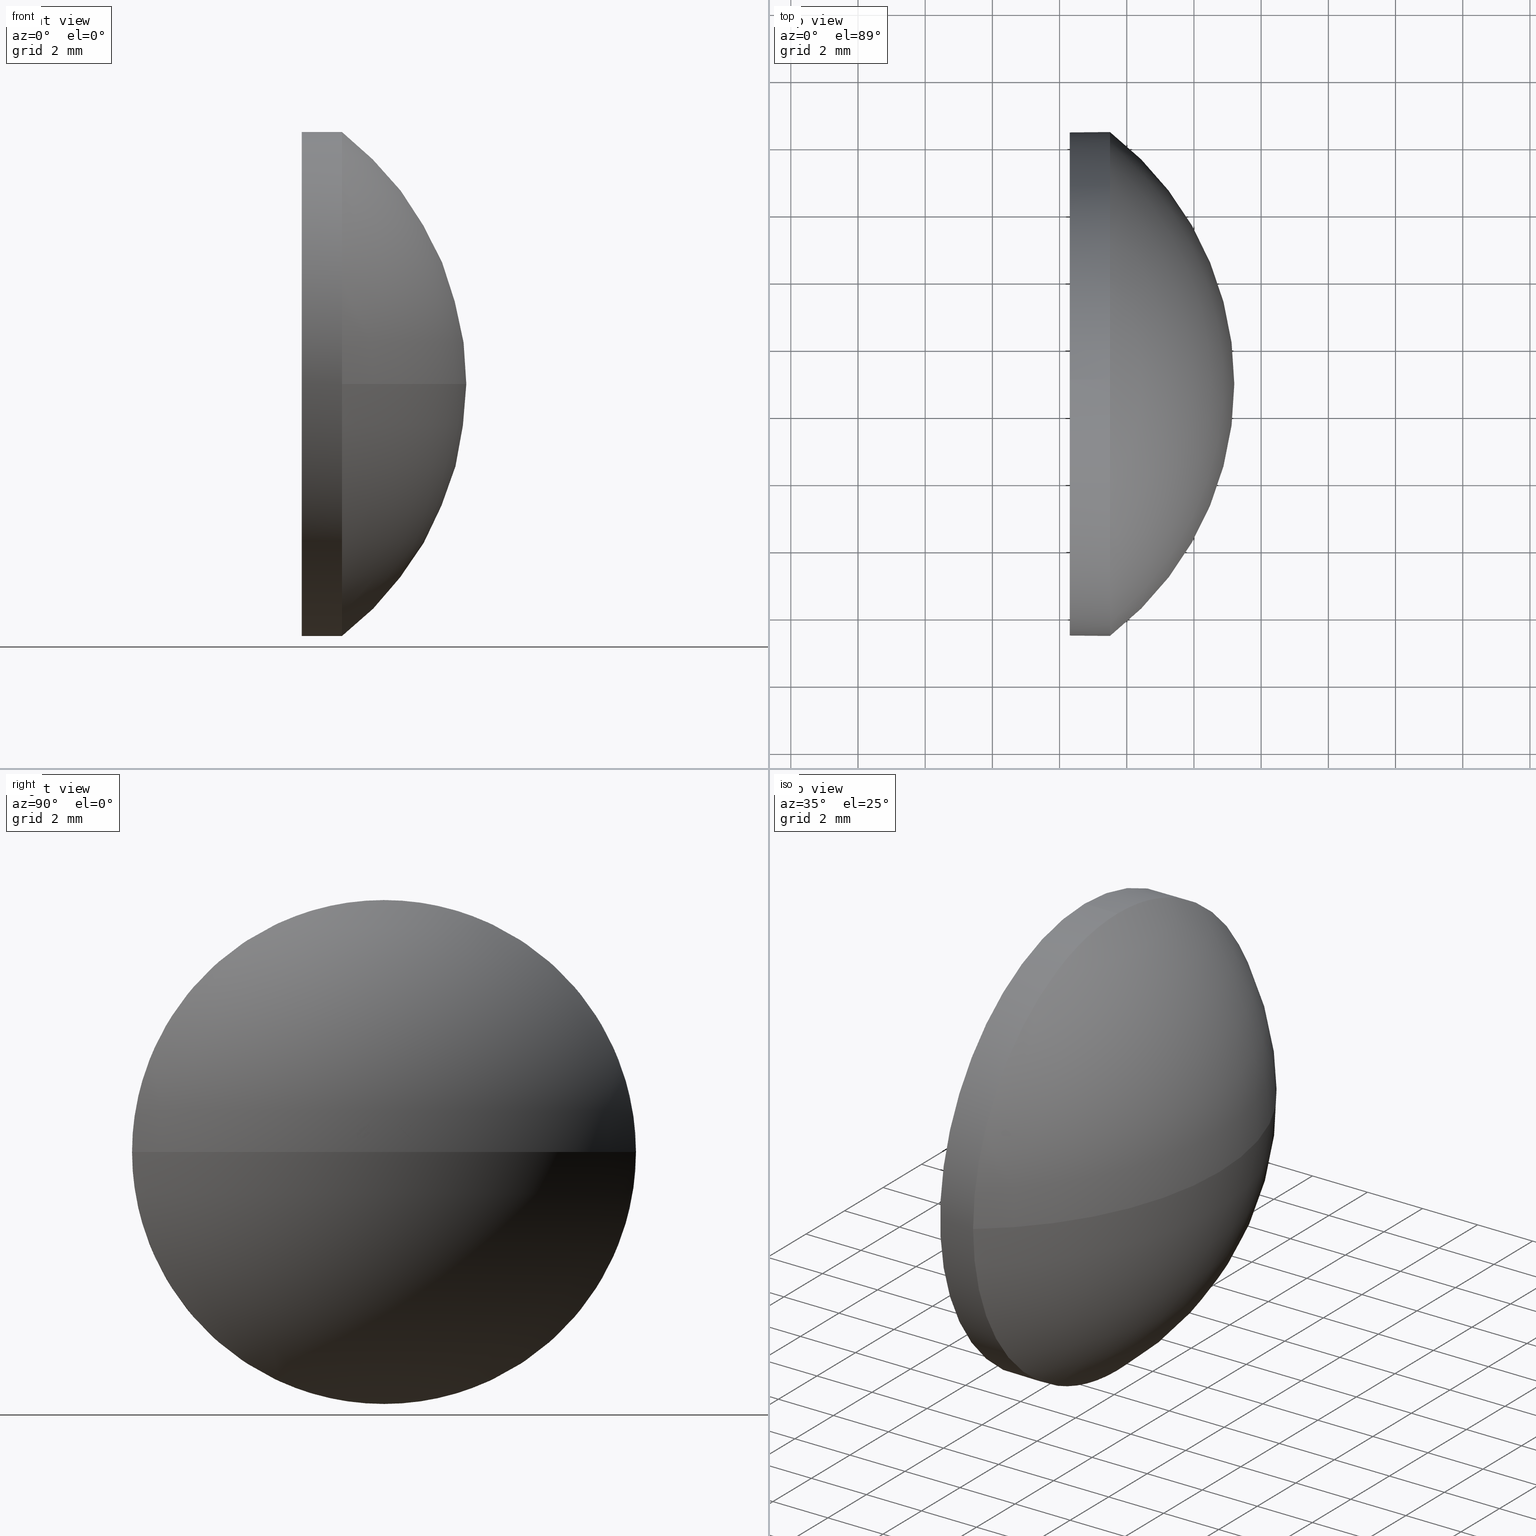
[diagram: canonical four-view strip — front | top / right | iso, engineering-drawing reading convention]
A machine part, canonical four-view strip (front | top / right | iso — engineering-drawing reading convention). The complete STEP part file that produces these views, byte-faithful:
ISO-10303-21;
HEADER;
FILE_DESCRIPTION (( 'STEP AP214' ),
    '1' );
FILE_NAME ('100369.STEP',
    '2019-06-04T05:46:23',
    ( '' ),
    ( '' ),
    'SwSTEP 2.0',
    'SolidWorks 2016',
    '' );
FILE_SCHEMA (( 'AUTOMOTIVE_DESIGN' ));
ENDSEC;

DATA;
#1 = MECHANICAL_DESIGN_GEOMETRIC_PRESENTATION_REPRESENTATION (  '', ( #13 ), #173 ) ;
#2 = DIRECTION ( 'NONE',  ( -1.000000000000000000, -0.0000000000000000000, -0.0000000000000000000 ) ) ;
#3 = SURFACE_STYLE_USAGE ( .BOTH. , #174 ) ;
#4 = PRESENTATION_STYLE_ASSIGNMENT (( #134 ) ) ;
#5 = PRESENTATION_LAYER_ASSIGNMENT (  '', '', ( #13 ) ) ;
#6 = DIRECTION ( 'NONE',  ( -1.000000000000000000, -0.0000000000000000000, -0.0000000000000000000 ) ) ;
#7 = EDGE_CURVE ( 'NONE', #115, #33, #166, .T. ) ;
#8 = DIRECTION ( 'NONE',  ( -1.000000000000000000, -0.0000000000000000000, -0.0000000000000000000 ) ) ;
#9 = AXIS2_PLACEMENT_3D ( 'NONE', #138, #83, #160 ) ;
#10 = SURFACE_STYLE_FILL_AREA ( #95 ) ;
#11 =( NAMED_UNIT ( * ) SI_UNIT ( $, .STERADIAN. ) SOLID_ANGLE_UNIT ( ) );
#12 = AXIS2_PLACEMENT_3D ( 'NONE', #64, #2, #34 ) ;
#13 = STYLED_ITEM ( 'NONE', ( #4 ), #35 ) ;
#14 = AXIS2_PLACEMENT_3D ( 'NONE', #97, #159, #110 ) ;
#15 = PRESENTATION_STYLE_ASSIGNMENT (( #3 ) ) ;
#16 = EDGE_LOOP ( 'NONE', ( #184, #43 ) ) ;
#17 =( NAMED_UNIT ( * ) PLANE_ANGLE_UNIT ( ) SI_UNIT ( $, .RADIAN. ) );
#18 = DIRECTION ( 'NONE',  ( 0.0000000000000000000, 0.0000000000000000000, 1.000000000000000000 ) ) ;
#19 = DIRECTION ( 'NONE',  ( -1.000000000000000000, -0.0000000000000000000, -0.0000000000000000000 ) ) ;
#20 =( NAMED_UNIT ( * ) PLANE_ANGLE_UNIT ( ) SI_UNIT ( $, .RADIAN. ) );
#21 = DIRECTION ( 'NONE',  ( 0.0000000000000000000, 1.224646799147353200E-016, -1.000000000000000000 ) ) ;
#22 = CIRCLE ( 'NONE', #44, 7.500000000000007100 ) ;
#23 = APPLICATION_PROTOCOL_DEFINITION ( 'draft international standard', 'automotive_design', 1998, #147 ) ;
#24 = UNCERTAINTY_MEASURE_WITH_UNIT (LENGTH_MEASURE( 1.000000000000000100E-005 ), #146, 'distance_accuracy_value', 'NONE');
#25 = EDGE_LOOP ( 'NONE', ( #181, #73, #55, #186 ) ) ;
#26 = EDGE_CURVE ( 'NONE', #33, #170, #61, .T. ) ;
#27 = CYLINDRICAL_SURFACE ( 'NONE', #12, 7.500000000000007100 ) ;
#28 = ORIENTED_EDGE ( 'NONE', *, *, #26, .T. ) ;
#29 = ORIENTED_EDGE ( 'NONE', *, *, #46, .F. ) ;
#30 = FILL_AREA_STYLE_COLOUR ( '', #58 ) ;
#31 = STYLED_ITEM ( 'NONE', ( #15 ), #86 ) ;
#32 = PRODUCT ( '100369', '100369', '', ( #53 ) ) ;
#33 = VERTEX_POINT ( 'NONE', #50 ) ;
#34 = DIRECTION ( 'NONE',  ( 0.0000000000000000000, 0.0000000000000000000, 1.000000000000000000 ) ) ;
#35 = ADVANCED_BREP_SHAPE_REPRESENTATION ( '100369', ( #86, #14 ), #41 ) ;
#36 = EDGE_CURVE ( 'NONE', #115, #92, #68, .T. ) ;
#37 = CARTESIAN_POINT ( 'NONE',  ( 376.3009013255557400, 56.89119272010739800, 0.0000000000000000000 ) ) ;
#38 = VECTOR ( 'NONE', #8, 1000.000000000000000 ) ;
#39 =( NAMED_UNIT ( * ) SI_UNIT ( $, .STERADIAN. ) SOLID_ANGLE_UNIT ( ) );
#40 = CARTESIAN_POINT ( 'NONE',  ( 377.5009013255557300, 56.89119272010739800, -7.500000000000007100 ) ) ;
#41 =( GEOMETRIC_REPRESENTATION_CONTEXT ( 3 ) GLOBAL_UNCERTAINTY_ASSIGNED_CONTEXT ( ( #24 ) ) GLOBAL_UNIT_ASSIGNED_CONTEXT ( ( #146, #122, #39 ) ) REPRESENTATION_CONTEXT ( 'NONE', 'WORKASPACE' ) );
#42 = CARTESIAN_POINT ( 'NONE',  ( 373.4600891948222700, 56.89119272010739800, -7.500000000000007100 ) ) ;
#43 = ORIENTED_EDGE ( 'NONE', *, *, #46, .T. ) ;
#44 = AXIS2_PLACEMENT_3D ( 'NONE', #172, #6, #131 ) ;
#45 = ORIENTED_EDGE ( 'NONE', *, *, #185, .F. ) ;
#46 = EDGE_CURVE ( 'NONE', #100, #92, #142, .T. ) ;
#47 = CARTESIAN_POINT ( 'NONE',  ( 377.5009013255557300, 56.89119272010739800, 0.0000000000000000000 ) ) ;
#48 = ORIENTED_EDGE ( 'NONE', *, *, #7, .T. ) ;
#49 = EDGE_CURVE ( 'NONE', #170, #132, #22, .T. ) ;
#50 = CARTESIAN_POINT ( 'NONE',  ( 377.5009013255557300, 64.39119272010739800, 0.0000000000000000000 ) ) ;
#51 =( NAMED_UNIT ( * ) SI_UNIT ( $, .STERADIAN. ) SOLID_ANGLE_UNIT ( ) );
#52 = DIRECTION ( 'NONE',  ( 1.000000000000000000, 0.0000000000000000000, 0.0000000000000000000 ) ) ;
#53 = PRODUCT_CONTEXT ( 'NONE', #158, 'mechanical' ) ;
#54 = DIRECTION ( 'NONE',  ( 0.0000000000000000000, 0.0000000000000000000, 1.000000000000000000 ) ) ;
#55 = ORIENTED_EDGE ( 'NONE', *, *, #49, .F. ) ;
#56 = AXIS2_PLACEMENT_3D ( 'NONE', #156, #19, #18 ) ;
#57 = ADVANCED_FACE ( 'NONE', ( #141 ), #98, .T. ) ;
#58 = COLOUR_RGB ( '',1.000000000000000000, 1.000000000000000000, 1.000000000000000000 ) ;
#59 = AXIS2_PLACEMENT_3D ( 'NONE', #79, #129, #93 ) ;
#60 = ORIENTED_EDGE ( 'NONE', *, *, #117, .T. ) ;
#61 = CIRCLE ( 'NONE', #154, 7.500000000000007100 ) ;
#62 = FILL_AREA_STYLE ('',( #30 ) ) ;
#63 = AXIS2_PLACEMENT_3D ( 'NONE', #144, #130, #90 ) ;
#64 = CARTESIAN_POINT ( 'NONE',  ( 373.4600891948222700, 56.89119272010739800, 0.0000000000000000000 ) ) ;
#65 = DIRECTION ( 'NONE',  ( 0.0000000000000000000, 0.0000000000000000000, 1.000000000000000000 ) ) ;
#66 = CARTESIAN_POINT ( 'NONE',  ( 376.3009013255557400, 56.89119272010739800, 0.0000000000000000000 ) ) ;
#67 = FACE_OUTER_BOUND ( 'NONE', #140, .T. ) ;
#68 = LINE ( 'NONE', #120, #87 ) ;
#69 = DIRECTION ( 'NONE',  ( 0.0000000000000000000, 1.000000000000000000, 1.224646799147352700E-016 ) ) ;
#70 = FILL_AREA_STYLE_COLOUR ( '', #88 ) ;
#71 =( GEOMETRIC_REPRESENTATION_CONTEXT ( 3 ) GLOBAL_UNCERTAINTY_ASSIGNED_CONTEXT ( ( #135 ) ) GLOBAL_UNIT_ASSIGNED_CONTEXT ( ( #106, #17, #11 ) ) REPRESENTATION_CONTEXT ( 'NONE', 'WORKASPACE' ) );
#72 = ADVANCED_FACE ( 'NONE', ( #105 ), #27, .T. ) ;
#73 = ORIENTED_EDGE ( 'NONE', *, *, #108, .T. ) ;
#74 = AXIS2_PLACEMENT_3D ( 'NONE', #164, #21, #69 ) ;
#75 = EDGE_LOOP ( 'NONE', ( #163, #60, #111, #177 ) ) ;
#76 = PLANE ( 'NONE',  #167 ) ;
#77 = DIRECTION ( 'NONE',  ( -1.000000000000000000, -0.0000000000000000000, -0.0000000000000000000 ) ) ;
#78 = ORIENTED_EDGE ( 'NONE', *, *, #49, .T. ) ;
#79 = CARTESIAN_POINT ( 'NONE',  ( 376.3009013255557400, 56.89119272010739800, 0.0000000000000000000 ) ) ;
#80 = DIRECTION ( 'NONE',  ( -1.000000000000000000, -0.0000000000000000000, -0.0000000000000000000 ) ) ;
#81 = DIRECTION ( 'NONE',  ( -0.0000000000000000000, 0.0000000000000000000, 1.000000000000000000 ) ) ;
#82 = CARTESIAN_POINT ( 'NONE',  ( 373.4600891948222700, 56.89119272010739800, 0.0000000000000000000 ) ) ;
#83 = DIRECTION ( 'NONE',  ( -0.0000000000000000000, 0.0000000000000000000, -1.000000000000000000 ) ) ;
#84 = VERTEX_POINT ( 'NONE', #116 ) ;
#85 = CIRCLE ( 'NONE', #74, 9.451351351351396700 ) ;
#86 = MANIFOLD_SOLID_BREP ( '��ת1', #104 ) ;
#87 = VECTOR ( 'NONE', #175, 1000.000000000000000 ) ;
#88 = COLOUR_RGB ( '',1.000000000000000000, 1.000000000000000000, 1.000000000000000000 ) ;
#89 = PRODUCT_DEFINITION ( 'δ֪', '', #107, #128 ) ;
#90 = DIRECTION ( 'NONE',  ( 0.0000000000000000000, 1.000000000000000000, 0.0000000000000000000 ) ) ;
#91 = SPHERICAL_SURFACE ( 'NONE', #9, 9.451351351351393100 ) ;
#92 = VERTEX_POINT ( 'NONE', #119 ) ;
#93 = DIRECTION ( 'NONE',  ( 0.0000000000000000000, 0.0000000000000000000, 1.000000000000000000 ) ) ;
#94 = EDGE_LOOP ( 'NONE', ( #28, #103, #45, #143, #48 ) ) ;
#95 = FILL_AREA_STYLE ('',( #70 ) ) ;
#96 = FACE_OUTER_BOUND ( 'NONE', #25, .T. ) ;
#97 = CARTESIAN_POINT ( 'NONE',  ( 0.0000000000000000000, 0.0000000000000000000, 0.0000000000000000000 ) ) ;
#98 = SPHERICAL_SURFACE ( 'NONE', #63, 9.451351351351393100 ) ;
#99 = ADVANCED_FACE ( 'NONE', ( #162 ), #76, .F. ) ;
#100 = VERTEX_POINT ( 'NONE', #182 ) ;
#101 = ADVANCED_FACE ( 'NONE', ( #67 ), #126, .T. ) ;
#102 = UNCERTAINTY_MEASURE_WITH_UNIT (LENGTH_MEASURE( 1.000000000000000100E-005 ), #123, 'distance_accuracy_value', 'NONE');
#103 = ORIENTED_EDGE ( 'NONE', *, *, #165, .T. ) ;
#104 = CLOSED_SHELL ( 'NONE', ( #72, #137, #57, #101, #99 ) ) ;
#105 = FACE_OUTER_BOUND ( 'NONE', #94, .T. ) ;
#106 =( LENGTH_UNIT ( ) NAMED_UNIT ( * ) SI_UNIT ( .MILLI., .METRE. ) );
#107 = PRODUCT_DEFINITION_FORMATION_WITH_SPECIFIED_SOURCE ( '�κ�', '', #32, .NOT_KNOWN. ) ;
#108 = EDGE_CURVE ( 'NONE', #84, #132, #85, .T. ) ;
#109 = SURFACE_SIDE_STYLE ('',( #10 ) ) ;
#110 = DIRECTION ( 'NONE',  ( 1.000000000000000000, 0.0000000000000000000, 0.0000000000000000000 ) ) ;
#111 = ORIENTED_EDGE ( 'NONE', *, *, #7, .F. ) ;
#112 = DIRECTION ( 'NONE',  ( 0.0000000000000000000, 0.0000000000000000000, 1.000000000000000000 ) ) ;
#113 = ORIENTED_EDGE ( 'NONE', *, *, #36, .T. ) ;
#114 = AXIS2_PLACEMENT_3D ( 'NONE', #161, #121, #112 ) ;
#115 = VERTEX_POINT ( 'NONE', #133 ) ;
#116 = CARTESIAN_POINT ( 'NONE',  ( 381.2009013255557200, 56.89119272010739100, 0.0000000000000000000 ) ) ;
#117 = EDGE_CURVE ( 'NONE', #84, #33, #151, .T. ) ;
#118 = ORIENTED_EDGE ( 'NONE', *, *, #148, .T. ) ;
#119 = CARTESIAN_POINT ( 'NONE',  ( 376.3009013255557400, 56.89119272010739800, 7.500000000000007100 ) ) ;
#120 = CARTESIAN_POINT ( 'NONE',  ( 373.4600891948222700, 56.89119272010739800, 7.500000000000007100 ) ) ;
#121 = DIRECTION ( 'NONE',  ( -1.000000000000000000, -0.0000000000000000000, -0.0000000000000000000 ) ) ;
#122 =( NAMED_UNIT ( * ) PLANE_ANGLE_UNIT ( ) SI_UNIT ( $, .RADIAN. ) );
#123 =( LENGTH_UNIT ( ) NAMED_UNIT ( * ) SI_UNIT ( .MILLI., .METRE. ) );
#124 = CIRCLE ( 'NONE', #114, 7.500000000000007100 ) ;
#125 = AXIS2_PLACEMENT_3D ( 'NONE', #183, #81, #139 ) ;
#126 = CYLINDRICAL_SURFACE ( 'NONE', #180, 7.500000000000007100 ) ;
#127 = SURFACE_STYLE_FILL_AREA ( #62 ) ;
#128 = PRODUCT_DEFINITION_CONTEXT ( 'detailed design', #147, 'design' ) ;
#129 = DIRECTION ( 'NONE',  ( -1.000000000000000000, -0.0000000000000000000, -0.0000000000000000000 ) ) ;
#130 = DIRECTION ( 'NONE',  ( -0.0000000000000000000, 0.0000000000000000000, -1.000000000000000000 ) ) ;
#131 = DIRECTION ( 'NONE',  ( 0.0000000000000000000, 0.0000000000000000000, 1.000000000000000000 ) ) ;
#132 = VERTEX_POINT ( 'NONE', #179 ) ;
#133 = CARTESIAN_POINT ( 'NONE',  ( 377.5009013255557300, 56.89119272010739800, 7.500000000000007100 ) ) ;
#134 = SURFACE_STYLE_USAGE ( .BOTH. , #109 ) ;
#135 = UNCERTAINTY_MEASURE_WITH_UNIT (LENGTH_MEASURE( 1.000000000000000100E-005 ), #106, 'distance_accuracy_value', 'NONE');
#136 = APPLICATION_PROTOCOL_DEFINITION ( 'draft international standard', 'automotive_design', 1998, #158 ) ;
#137 = ADVANCED_FACE ( 'NONE', ( #96 ), #91, .T. ) ;
#138 = CARTESIAN_POINT ( 'NONE',  ( 371.7495499742043400, 56.89119272010739100, 0.0000000000000000000 ) ) ;
#139 = DIRECTION ( 'NONE',  ( 1.000000000000000000, 0.0000000000000000000, 0.0000000000000000000 ) ) ;
#140 = EDGE_LOOP ( 'NONE', ( #168, #78, #118, #113, #29 ) ) ;
#141 = FACE_OUTER_BOUND ( 'NONE', #75, .T. ) ;
#142 = CIRCLE ( 'NONE', #59, 7.500000000000007100 ) ;
#143 = ORIENTED_EDGE ( 'NONE', *, *, #36, .F. ) ;
#144 = CARTESIAN_POINT ( 'NONE',  ( 371.7495499742043400, 56.89119272010739100, 0.0000000000000000000 ) ) ;
#145 = PRODUCT_DEFINITION_SHAPE ( 'NONE', 'NONE',  #89 ) ;
#146 =( LENGTH_UNIT ( ) NAMED_UNIT ( * ) SI_UNIT ( .MILLI., .METRE. ) );
#147 = APPLICATION_CONTEXT ( 'automotive_design' ) ;
#148 = EDGE_CURVE ( 'NONE', #132, #115, #124, .T. ) ;
#149 = DIRECTION ( 'NONE',  ( -1.000000000000000000, -0.0000000000000000000, -0.0000000000000000000 ) ) ;
#150 = DIRECTION ( 'NONE',  ( 0.0000000000000000000, 0.0000000000000000000, -1.000000000000000000 ) ) ;
#151 = CIRCLE ( 'NONE', #125, 9.451351351351389600 ) ;
#152 = PRODUCT_RELATED_PRODUCT_CATEGORY ( 'part', '', ( #32 ) ) ;
#153 = MECHANICAL_DESIGN_GEOMETRIC_PRESENTATION_REPRESENTATION (  '', ( #31 ), #71 ) ;
#154 = AXIS2_PLACEMENT_3D ( 'NONE', #47, #77, #65 ) ;
#155 = CIRCLE ( 'NONE', #169, 7.500000000000007100 ) ;
#156 = CARTESIAN_POINT ( 'NONE',  ( 377.5009013255557300, 56.89119272010739800, 0.0000000000000000000 ) ) ;
#157 = LINE ( 'NONE', #42, #38 ) ;
#158 = APPLICATION_CONTEXT ( 'automotive_design' ) ;
#159 = DIRECTION ( 'NONE',  ( 0.0000000000000000000, 0.0000000000000000000, 1.000000000000000000 ) ) ;
#160 = DIRECTION ( 'NONE',  ( 0.0000000000000000000, 1.000000000000000000, 0.0000000000000000000 ) ) ;
#161 = CARTESIAN_POINT ( 'NONE',  ( 377.5009013255557300, 56.89119272010739800, 0.0000000000000000000 ) ) ;
#162 = FACE_OUTER_BOUND ( 'NONE', #16, .T. ) ;
#163 = ORIENTED_EDGE ( 'NONE', *, *, #108, .F. ) ;
#164 = CARTESIAN_POINT ( 'NONE',  ( 371.7495499742043400, 56.89119272010739100, 0.0000000000000000000 ) ) ;
#165 = EDGE_CURVE ( 'NONE', #170, #100, #157, .T. ) ;
#166 = CIRCLE ( 'NONE', #56, 7.500000000000007100 ) ;
#167 = AXIS2_PLACEMENT_3D ( 'NONE', #37, #52, #150 ) ;
#168 = ORIENTED_EDGE ( 'NONE', *, *, #165, .F. ) ;
#169 = AXIS2_PLACEMENT_3D ( 'NONE', #66, #80, #178 ) ;
#170 = VERTEX_POINT ( 'NONE', #40 ) ;
#171 = SHAPE_DEFINITION_REPRESENTATION ( #145, #35 ) ;
#172 = CARTESIAN_POINT ( 'NONE',  ( 377.5009013255557300, 56.89119272010739800, 0.0000000000000000000 ) ) ;
#173 =( GEOMETRIC_REPRESENTATION_CONTEXT ( 3 ) GLOBAL_UNCERTAINTY_ASSIGNED_CONTEXT ( ( #102 ) ) GLOBAL_UNIT_ASSIGNED_CONTEXT ( ( #123, #20, #51 ) ) REPRESENTATION_CONTEXT ( 'NONE', 'WORKASPACE' ) );
#174 = SURFACE_SIDE_STYLE ('',( #127 ) ) ;
#175 = DIRECTION ( 'NONE',  ( -1.000000000000000000, -0.0000000000000000000, -0.0000000000000000000 ) ) ;
#176 = PRESENTATION_LAYER_ASSIGNMENT (  '', '', ( #31 ) ) ;
#177 = ORIENTED_EDGE ( 'NONE', *, *, #148, .F. ) ;
#178 = DIRECTION ( 'NONE',  ( 0.0000000000000000000, 0.0000000000000000000, 1.000000000000000000 ) ) ;
#179 = CARTESIAN_POINT ( 'NONE',  ( 377.5009013255557300, 49.39119272010739100, -9.184850993605151900E-016 ) ) ;
#180 = AXIS2_PLACEMENT_3D ( 'NONE', #82, #149, #54 ) ;
#181 = ORIENTED_EDGE ( 'NONE', *, *, #117, .F. ) ;
#182 = CARTESIAN_POINT ( 'NONE',  ( 376.3009013255557400, 56.89119272010739800, -7.500000000000007100 ) ) ;
#183 = CARTESIAN_POINT ( 'NONE',  ( 371.7495499742043400, 56.89119272010739100, 0.0000000000000000000 ) ) ;
#184 = ORIENTED_EDGE ( 'NONE', *, *, #185, .T. ) ;
#185 = EDGE_CURVE ( 'NONE', #92, #100, #155, .T. ) ;
#186 = ORIENTED_EDGE ( 'NONE', *, *, #26, .F. ) ;
ENDSEC;
END-ISO-10303-21;
